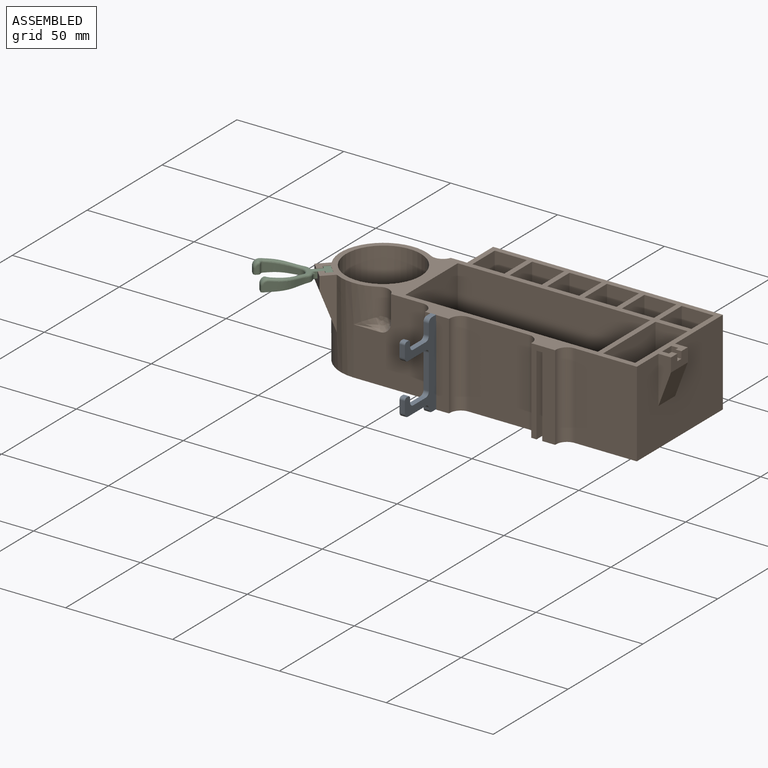
[diagram: assembled view]
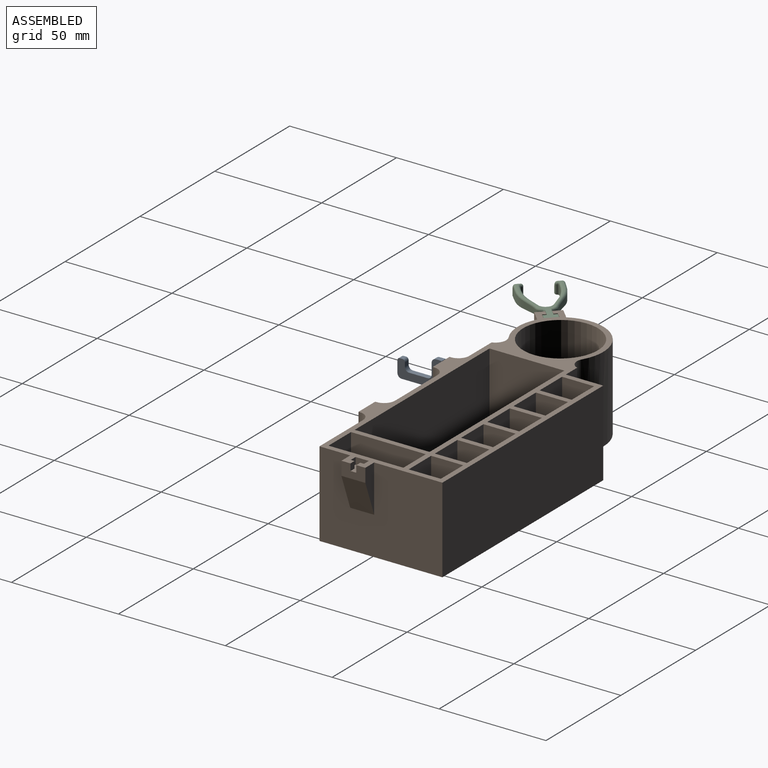
[diagram: assembled view, second angle]
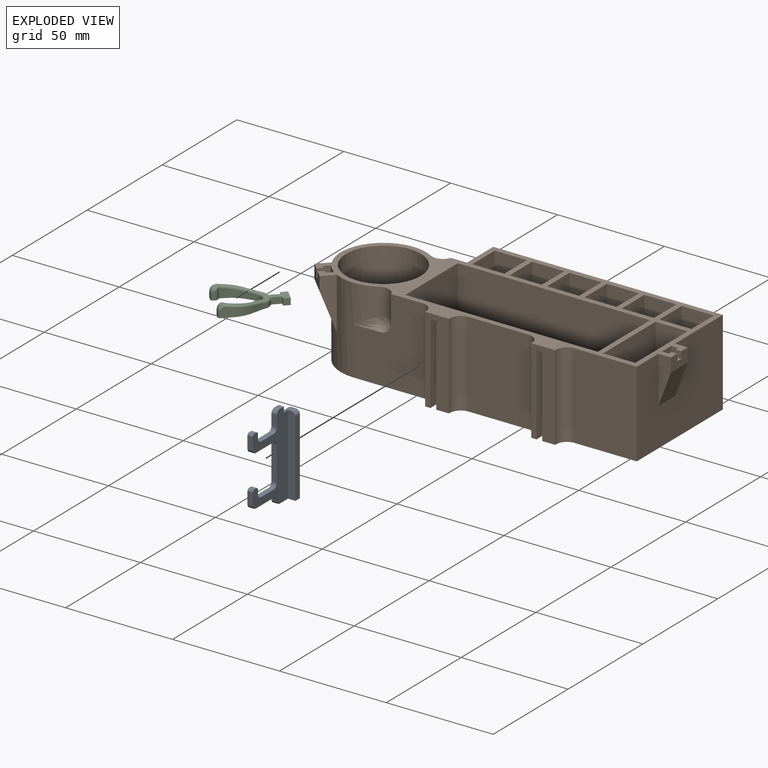
[diagram: exploded view]
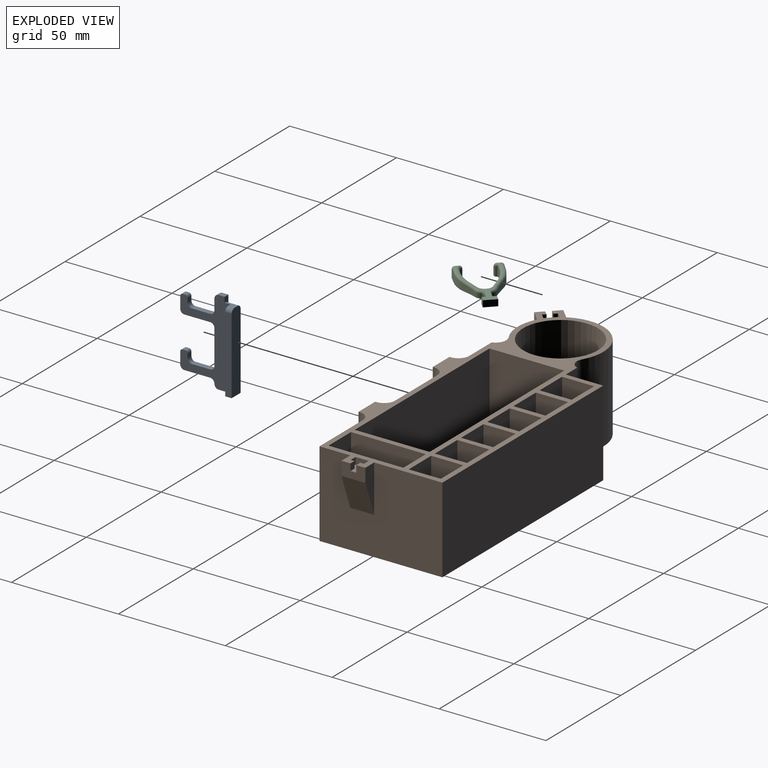
[diagram: exploded view, second angle]
ASSEMBLY  parts=3 mates=2
PART A: 38 faces, bbox 26.5x6x40 mm
  f0: plane 2.8x2.5mm, normal (0,0,1), area 7mm2, adj f15,f16,f19,f35
  f1: plane 16x2.5mm, normal (1,0,0), area 40mm2, adj f15,f16,f17,f22
  f2: plane 12x2.5mm, normal (0,0,-1), area 30mm2, adj f15,f16,f17,f24
  f3: plane 5.34x2.5mm, normal (1,0,0), area 13.3mm2, adj f15,f16,f24,f28
  f4: plane 2.5x1.17mm, normal (0,0,1), area 2.9mm2, adj f15,f16,f27,f28
  f5: plane 2.5x1.84mm, normal (-1,0,0), area 4.6mm2, adj f15,f16,f23,f27
  f6: plane 8.5x2.5mm, normal (0,0,1), area 21.2mm2, adj f15,f16,f18,f23
  f7: plane 5x2.5mm, normal (1,0,0), area 12.5mm2, adj f15,f16,f18,f19
  f8: plane 8.5x6mm, normal (0,0,-1), area 31.8mm2, adj f15,f16,f20,f31,f32,f33
  f9: plane 2.5x0mm, normal (1,0,0), area 0mm2, adj f15,f16,f20,f21
  f10: plane 12x2.5mm, normal (0,0,-1), area 30mm2, adj f15,f16,f21,f26
  f11: plane 5.34x2.5mm, normal (1,0,0), area 13.3mm2, adj f15,f16,f26,f30
  f12: plane 2.5x1.17mm, normal (0,0,1), area 2.9mm2, adj f15,f16,f29,f30
  f13: plane 2.5x1.84mm, normal (-1,0,0), area 4.6mm2, adj f15,f16,f25,f29
  f14: plane 8.5x2.5mm, normal (0,0,1), area 21.2mm2, adj f15,f16,f22,f25
  f15: plane 40.01x26.5mm, normal (0,-1,0), area 542.1mm2, adj f0,f1,f2,f3,f4,f5,f6,f7
  f16: plane 40.01x23.5mm, normal (0,1,0), area 440.8mm2, adj f0,f1,f2,f3,f4,f5,f6,f7
  f17: cylinder r=2mm len=2.5mm, axis (0,-1,0), area 7.9mm2, adj f1,f2,f15,f16
  f18: cylinder r=2mm len=2.5mm, axis (0,1,0), area 7.9mm2, adj f6,f7,f15,f16
  f19: cylinder r=2mm len=2.5mm, axis (0,-1,0), area 7.9mm2, adj f0,f7,f15,f16
  f20: cylinder r=2mm len=2.5mm, axis (0,1,0), area 7.9mm2, adj f8,f9,f15,f16
  f21: cylinder r=2mm len=2.5mm, axis (0,-1,0), area 7.9mm2, adj f9,f10,f15,f16
  f22: cylinder r=2mm len=2.5mm, axis (0,1,0), area 7.9mm2, adj f1,f14,f15,f16
  f23: cylinder r=2mm len=2.5mm, axis (0,1,0), area 7.9mm2, adj f5,f6,f15,f16
  f24: cylinder r=2mm len=2.5mm, axis (0,1,0), area 7.9mm2, adj f2,f3,f15,f16
  f25: cylinder r=2mm len=2.5mm, axis (0,1,0), area 7.9mm2, adj f13,f14,f15,f16
  f26: cylinder r=2mm len=2.5mm, axis (0,1,0), area 7.9mm2, adj f10,f11,f15,f16
  f27: cylinder r=1.17mm len=2.5mm, axis (0,-1,0), area 4.6mm2, adj f4,f5,f15,f16
  f28: cylinder r=1.17mm len=2.5mm, axis (0,-1,0), area 4.6mm2, adj f3,f4,f15,f16
  f29: cylinder r=1.17mm len=2.5mm, axis (0,-1,0), area 4.6mm2, adj f12,f13,f15,f16
  f30: cylinder r=1.17mm len=2.5mm, axis (0,-1,0), area 4.6mm2, adj f11,f12,f15,f16
  f31: plane 37.5x3.5mm, normal (1,0,0), area 130.4mm2, adj f8,f16,f32,f34,f37
  f32: plane 35.54x3mm, normal (0,1,0), area 106.6mm2, adj f8,f31,f33,f37
  f33: plane 37.5x6mm, normal (-1,0,0), area 223.3mm2, adj f8,f15,f32,f34,f36,f37
  f34: plane 5.7x2.08mm, normal (0,0,1), area 7.7mm2, adj f16,f31,f33,f35,f36,f37
  f35: plane 4.47x2.5mm, normal (-1,0,0), area 7.1mm2, adj f0,f15,f16,f34,f36
  f36: cylinder r=1.96mm len=5.7mm, axis (1,0,0), area 17.6mm2, adj f15,f33,f34,f35
  f37: cylinder r=1.96mm len=3mm, axis (1,0,0), area 9.2mm2, adj f31,f32,f33,f34
PART B: 108 faces, bbox 160.7x63.2x40 mm
  f0: plane 6.2x3.2mm, normal (1,0,0), area 19.8mm2, adj f15,f101,f102,f106
  f1: plane 57.5x40mm, normal (1,0,0), area 2052.4mm2, adj f15,f17,f29,f73,f100,f103,f107
  f2: plane 37.5x15mm, normal (0,1,0), area 562.5mm2, adj f15,f69,f77,f83
  f3: plane 37.5x15mm, normal (0,1,0), area 562.5mm2, adj f15,f60,f61,f79
  f4: plane 37.5x15mm, normal (0,1,0), area 562.5mm2, adj f15,f63,f74,f84
  f5: plane 37.5x15mm, normal (0,1,0), area 562.5mm2, adj f15,f64,f65,f81
  f6: plane 37.5x15mm, normal (0,1,0), area 562.5mm2, adj f15,f66,f67,f80
  f7: plane 37.5x15mm, normal (0,1,0), area 562.5mm2, adj f15,f70,f72,f82
  f8: plane 40x25.05mm, normal (0,1,0), area 701.3mm2, adj f15,f17,f28,f48,f49,f50,f59
  f9: plane 37.5x15mm, normal (0,1,0), area 562.5mm2, adj f10,f12,f13,f15
  f10: plane 37.5x35mm, normal (1,0,0), area 1312.5mm2, adj f9,f11,f13,f15
  f11: plane 37.5x15mm, normal (0,-1,0), area 562.5mm2, adj f10,f12,f13,f15
  f12: plane 37.5x35mm, normal (-1,0,0), area 1312.5mm2, adj f9,f11,f13,f15
  f13: plane 35x15mm, normal (0,0,1), area 525mm2, adj f9,f10,f11,f12
  f14: plane 6.2x5.7mm, normal (0,0,-1), area 26.6mm2, adj f18,f19,f20,f21,f22,f35
  f15: plane 160.68x63.2mm, normal (0,0,1), area 1994.1mm2, adj f0,f1,f2,f3,f4,f5,f6,f7
  f16: plane 6.2x5.7mm, normal (0,0,-1), area 26.6mm2, adj f23,f24,f25,f26,f27,f31
  f17: plane 152.5x63.2mm, normal (0,0,-1), area 7905.3mm2, adj f1,f8,f18,f19,f20,f21,f22,f23
  f18: plane 37.5x6.2mm, normal (0,-1,0), area 232.5mm2, adj f14,f17,f19,f22
  f19: plane 37.5x3.2mm, normal (-1,0,0), area 120mm2, adj f14,f17,f18,f20
  f20: plane 37.5x3.5mm, normal (0,1,0), area 131.2mm2, adj f14,f17,f19,f21
  f21: plane 37.5x2.5mm, normal (-1,0,0), area 93.8mm2, adj f14,f17,f20,f35
  f22: plane 37.5x5.7mm, normal (1,0,0), area 213.8mm2, adj f14,f17,f18,f35
  f23: plane 37.5x6.2mm, normal (0,-1,0), area 232.5mm2, adj f16,f17,f24,f27
  f24: plane 37.5x3.2mm, normal (-1,0,0), area 120mm2, adj f16,f17,f23,f25
  f25: plane 37.5x3.5mm, normal (0,1,0), area 131.2mm2, adj f16,f17,f24,f26
  f26: plane 37.5x2.5mm, normal (-1,0,0), area 93.8mm2, adj f16,f17,f25,f31
  f27: plane 37.5x5.7mm, normal (1,0,0), area 213.8mm2, adj f16,f17,f23,f31
  f28: cylinder r=20mm len=40mm, axis (0,0,1), area 2565.1mm2, adj f8,f15,f17,f37,f45,f46,f47,f48
  f29: plane 40x29.14mm, normal (0,-1,0), area 1165.4mm2, adj f1,f15,f17,f51
  f30: plane 40x0.62mm, normal (1,0,0), area 24.8mm2, adj f15,f17,f31,f51
  f31: plane 40x11.2mm, normal (0,-1,0), area 346.8mm2, adj f15,f16,f17,f26,f27,f30,f32
  f32: plane 40x0.62mm, normal (-1,0,0), area 24.8mm2, adj f15,f17,f31,f54
  f33: plane 40x28.25mm, normal (0,-1,0), area 1130.2mm2, adj f15,f17,f53,f54
  f34: plane 40x0.62mm, normal (1,0,0), area 24.8mm2, adj f15,f17,f35,f53
  f35: plane 40x11.2mm, normal (0,-1,0), area 346.8mm2, adj f14,f15,f17,f21,f22,f34,f36
  f36: plane 40x0.62mm, normal (-1,0,0), area 24.8mm2, adj f15,f17,f35,f52
  f37: plane 40x32.39mm, normal (0,-1,0), area 994.9mm2, adj f15,f17,f28,f45,f46,f47,f52
  f38: plane 79.84x24.84mm, normal (0,0,1), area 1983.2mm2, adj f55,f56,f57,f58
  f39: plane 35x32.42mm, normal (1,0,0), area 1134.7mm2, adj f15,f40,f42,f57
  f40: plane 90x32.42mm, normal (0,1,0), area 2917.8mm2, adj f15,f39,f41,f58
  f41: plane 35x32.42mm, normal (-1,0,0), area 1134.7mm2, adj f15,f40,f42,f56
  f42: plane 90x32.42mm, normal (0,-1,0), area 2917.8mm2, adj f15,f39,f41,f55
  f43: plane 35x35mm, normal (0,0,1), area 962.1mm2, adj f44
  f44: cylinder r=17.5mm len=37.5mm, axis (0,0,-1), area 4123.3mm2, adj f15,f43
  f45: bspline ~13.08x4.89mm, area 33.2mm2, adj f28,f37,f46
  f46: bspline ~7.62x6.66mm, area 40.3mm2, adj f28,f37,f45,f47
  f47: cylinder r=5.08mm len=12.42mm, axis (0,0,1), area 111.9mm2, adj f15,f28,f37,f46
  f48: bspline ~13.08x4.89mm, area 33.7mm2, adj f8,f28,f49
  f49: bspline ~7.8x6.34mm, area 40.3mm2, adj f8,f28,f48,f50
  f50: cylinder r=5.08mm len=12.42mm, axis (0,0,1), area 111.9mm2, adj f8,f15,f28,f49
  f51: cylinder r=5.08mm len=40mm, axis (0,0,1), area 319.2mm2, adj f15,f17,f29,f30
  f52: cylinder r=5.08mm len=40mm, axis (0,0,1), area 319.2mm2, adj f15,f17,f36,f37
  f53: cylinder r=5.08mm len=40mm, axis (0,0,1), area 319.2mm2, adj f15,f17,f33,f34
  f54: cylinder r=5.08mm len=40mm, axis (0,0,-1), area 319.2mm2, adj f15,f17,f32,f33
  f55: cylinder r=5.08mm len=90mm, axis (1,0,0), area 688.7mm2, adj f38,f42,f56,f57
  f56: cylinder r=5.08mm len=35mm, axis (0,-1,0), area 249.8mm2, adj f38,f41,f55,f58
  f57: cylinder r=5.08mm len=35mm, axis (0,1,0), area 249.8mm2, adj f38,f39,f55,f58
  f58: cylinder r=5.08mm len=90mm, axis (-1,0,0), area 688.7mm2, adj f38,f40,f56,f57
  f59: plane 40x17.5mm, normal (-1,0,0), area 700mm2, adj f8,f15,f17,f73
  f60: plane 37.5x15mm, normal (-1,0,0), area 562.5mm2, adj f3,f15,f78,f79
  f61: plane 37.5x15mm, normal (1,0,0), area 562.5mm2, adj f3,f15,f78,f79
  f62: plane 37.5x15mm, normal (0,-1,0), area 562.5mm2, adj f15,f63,f74,f84
  f63: plane 37.5x15mm, normal (-1,0,0), area 562.5mm2, adj f4,f15,f62,f84
  f64: plane 37.5x15mm, normal (-1,0,0), area 562.5mm2, adj f5,f15,f75,f81
  f65: plane 37.5x15mm, normal (1,0,0), area 562.5mm2, adj f5,f15,f75,f81
  f66: plane 37.5x15mm, normal (-1,0,0), area 562.5mm2, adj f6,f15,f76,f80
  f67: plane 37.5x15mm, normal (1,0,0), area 562.5mm2, adj f6,f15,f76,f80
  f68: plane 37.5x15mm, normal (0,-1,0), area 562.5mm2, adj f15,f69,f77,f83
  f69: plane 37.5x15mm, normal (-1,0,0), area 562.5mm2, adj f2,f15,f68,f83
  f70: plane 37.5x15mm, normal (1,0,0), area 562.5mm2, adj f7,f15,f71,f82
  f71: plane 37.5x15mm, normal (0,-1,0), area 562.5mm2, adj f15,f70,f72,f82
  f72: plane 37.5x15mm, normal (-1,0,0), area 562.5mm2, adj f7,f15,f71,f82
  f73: plane 107.45x40mm, normal (0,1,0), area 4298mm2, adj f1,f15,f17,f59
  f74: plane 37.5x15mm, normal (1,0,0), area 562.5mm2, adj f4,f15,f62,f84
  f75: plane 37.5x15mm, normal (0,-1,0), area 562.5mm2, adj f15,f64,f65,f81
  f76: plane 37.5x15mm, normal (0,-1,0), area 562.5mm2, adj f15,f66,f67,f80
  f77: plane 37.5x15mm, normal (1,0,0), area 562.5mm2, adj f2,f15,f68,f83
  f78: plane 37.5x15mm, normal (0,-1,0), area 562.5mm2, adj f15,f60,f61,f79
  f79: plane 15x15mm, normal (0,0,1), area 225mm2, adj f3,f60,f61,f78
  f80: plane 15x15mm, normal (0,0,1), area 225mm2, adj f6,f66,f67,f76
  f81: plane 15x15mm, normal (0,0,1), area 225mm2, adj f5,f64,f65,f75
  f82: plane 15x15mm, normal (0,0,1), area 225mm2, adj f7,f70,f71,f72
  f83: plane 15x15mm, normal (0,0,1), area 225mm2, adj f2,f68,f69,f77
  f84: plane 15x15mm, normal (0,0,1), area 225mm2, adj f4,f62,f63,f74
  f85: plane 4.45x4.45mm, normal (-0.71,-0.71,0), area 20.1mm2, adj f15,f90,f94,f95
  f86: plane 24.25x4.74mm, normal (-0.71,0.71,0), area 102.6mm2, adj f15,f28,f87,f96
  f87: plane 8x8mm, normal (-0.71,-0.71,0), area 63.5mm2, adj f15,f86,f88,f92,f93,f95,f96
  f88: plane 3.2x1.91mm, normal (0.71,-0.71,0), area 8.6mm2, adj f15,f87,f89,f95
  f89: plane 3.2x1.24mm, normal (0.71,0.71,0), area 5.6mm2, adj f15,f88,f90,f95
  f90: plane 3.2x2.33mm, normal (0.73,-0.69,0), area 10.2mm2, adj f15,f85,f89,f95
  f91: plane 3.2x1.24mm, normal (0.71,0.71,0), area 5.6mm2, adj f15,f92,f94,f95
  f92: plane 3.2x1.91mm, normal (-0.71,0.71,0), area 8.6mm2, adj f15,f87,f91,f95
  f93: plane 24.32x4.76mm, normal (0.71,-0.71,0), area 103.3mm2, adj f15,f28,f87,f96
  f94: plane 3.2x2.26mm, normal (-0.71,0.71,0), area 10.2mm2, adj f15,f85,f91,f95
  f95: plane 7.38x7.32mm, normal (0,0,1), area 27.3mm2, adj f85,f87,f88,f89,f90,f91,f92,f94
  f96: plane 17.95x12.76mm, normal (-0.66,-0.66,-0.35), area 198.9mm2, adj f28,f86,f87,f93
  f97: plane 3.2x1.75mm, normal (-1,0,0), area 5.6mm2, adj f15,f98,f101,f106
  f98: plane 3.2x2.7mm, normal (0,-1,0), area 8.6mm2, adj f15,f97,f99,f106
  f99: plane 11.2x6.38mm, normal (1,0,0), area 62.7mm2, adj f15,f98,f100,f103,f104,f106,f107
  f100: plane 22.11x5.9mm, normal (0,1,0), area 84mm2, adj f1,f15,f99,f107
  f101: plane 3.2x3.2mm, normal (0,-1,0), area 10.2mm2, adj f0,f15,f97,f106
  f102: plane 3.2x3.2mm, normal (0,1,0), area 10.2mm2, adj f0,f15,f105,f106
  f103: plane 22.11x5.9mm, normal (0,-1,0), area 84mm2, adj f1,f15,f99,f107
  f104: plane 3.2x2.7mm, normal (0,1,0), area 8.6mm2, adj f15,f99,f105,f106
  f105: plane 3.2x1.75mm, normal (-1,0,0), area 5.6mm2, adj f15,f102,f104,f106
  f106: plane 6.2x5.9mm, normal (0,0,1), area 27.1mm2, adj f0,f97,f98,f99,f101,f102,f104,f105
  f107: plane 15.73x11.2mm, normal (0.94,0,-0.35), area 188.2mm2, adj f1,f99,f100,f103
PART C: 78 faces, bbox 20.6x30.1x6.5 mm
  f0: plane 3x3mm, normal (1,0,0), area 9mm2, adj f1,f19,f20,f22
  f1: plane 3x1.75mm, normal (0,1,0), area 5.3mm2, adj f0,f2,f20,f22
  f2: plane 5.69x3.4mm, normal (1,0,0), area 11.2mm2, adj f1,f20,f21,f22,f26,f58
  f3: plane 3.51x3.13mm, normal (0.85,-0.53,0), area 12mm2, adj f20,f31,f33,f55
  f4: plane 4.83x4.46mm, normal (1,0,0), area 20.3mm2, adj f20,f33,f51,f52,f53
  f5: plane 2.64x1.92mm, normal (0,1,0), area 5.1mm2, adj f20,f23,f41,f51
  f6: plane 4.08x0.79mm, normal (-1,0,0), area 2.9mm2, adj f20,f40,f41,f42
  f7: plane 4.32x1.83mm, normal (-1,0,0), area 7.7mm2, adj f20,f34,f60,f65
  f8: plane 3.92x2.99mm, normal (-0.85,0.53,0), area 12.6mm2, adj f20,f29,f34,f67
  f9: plane 2.21x0.38mm, normal (0,1,0), area 0.8mm2, adj f20,f29,f30,f69
  f10: plane 3.92x2.99mm, normal (0.85,0.53,0), area 12.6mm2, adj f20,f30,f35,f71
  f11: plane 4.32x1.83mm, normal (1,0,0), area 7.7mm2, adj f20,f35,f59,f73
  f12: plane 4.08x0.79mm, normal (1,0,0), area 2.9mm2, adj f20,f37,f38,f39
  f13: plane 2.64x1.92mm, normal (0,1,0), area 5.1mm2, adj f20,f24,f37,f43
  f14: plane 4.83x4.46mm, normal (-1,0,0), area 20.3mm2, adj f20,f36,f43,f44,f45
  f15: plane 3.51x3.13mm, normal (-0.85,-0.53,0), area 12mm2, adj f20,f32,f36,f47
  f16: plane 5.69x3.4mm, normal (-1,0,0), area 11.2mm2, adj f17,f20,f21,f22,f25,f50
  f17: plane 3x1.75mm, normal (0,1,0), area 5.3mm2, adj f16,f18,f20,f22
  f18: plane 3x3mm, normal (-1,0,0), area 9mm2, adj f17,f19,f20,f22
  f19: plane 6x3mm, normal (0,-1,0), area 18mm2, adj f0,f18,f20,f22
  f20: plane 29.56x20.25mm, normal (0,0,-1), area 155.3mm2, adj f0,f1,f2,f3,f4,f5,f6,f7
  f21: plane 18.38x18.28mm, normal (0,-0.13,0.99), area 20.6mm2, adj f2,f16,f22,f23,f24,f45,f46,f47
  f22: plane 8x6mm, normal (0,0,1), area 30.5mm2, adj f0,f1,f2,f16,f17,f18,f19,f21
  f23: cylinder r=2.8mm len=3.17mm, axis (1,0,0), area 8.2mm2, adj f5,f21,f42,f52,f63
  f24: cylinder r=2.8mm len=3.17mm, axis (1,0,0), area 8.2mm2, adj f13,f21,f39,f44,f75
  f25: cylinder r=1.53mm len=2.12mm, axis (0,0,-1), area 3.8mm2, adj f16,f20,f27,f50
  f26: cylinder r=1.53mm len=2.12mm, axis (0,0,1), area 3.8mm2, adj f2,f20,f28,f58
  f27: cylinder r=3.31mm len=2.29mm, axis (0,0,-1), area 6.1mm2, adj f20,f25,f32,f49
  f28: cylinder r=3.31mm len=2.29mm, axis (0,0,-1), area 6.1mm2, adj f20,f26,f31,f57
  f29: cylinder r=3.3mm len=2.81mm, axis (0,0,1), area 7.9mm2, adj f8,f9,f20,f68
  f30: cylinder r=3.3mm len=2.81mm, axis (0,0,-1), area 7.9mm2, adj f9,f10,f20,f70
  f31: cylinder r=23.5mm len=2.76mm, axis (0,0,-1), area 7.7mm2, adj f3,f20,f28,f56
  f32: cylinder r=23.5mm len=2.76mm, axis (0,0,-1), area 7.7mm2, adj f15,f20,f27,f48
  f33: cylinder r=14.75mm len=7.75mm, axis (0,0,-1), area 29.4mm2, adj f3,f4,f20,f54
  f34: cylinder r=14.75mm len=7.75mm, axis (0,0,1), area 28.9mm2, adj f7,f8,f20,f66
  f35: cylinder r=14.75mm len=7.75mm, axis (0,0,1), area 28.9mm2, adj f10,f11,f20,f72
  f36: cylinder r=14.75mm len=7.75mm, axis (0,0,-1), area 29.4mm2, adj f14,f15,f20,f46
  f37: cylinder r=1.1mm len=2.64mm, axis (0,0,-1), area 4.6mm2, adj f12,f13,f20,f39
  f38: cylinder r=1.1mm len=4.28mm, axis (0,0,1), area 5.7mm2, adj f12,f20,f59,f77
  f39: torus R=1.7mm, axis (1,0,0), area 4.5mm2, adj f12,f24,f37,f76,f77
  f40: cylinder r=1.1mm len=4.28mm, axis (0,0,1), area 5.7mm2, adj f6,f20,f60,f61
  f41: cylinder r=1.1mm len=2.64mm, axis (0,0,-1), area 4.6mm2, adj f5,f6,f20,f42
  f42: torus R=1.7mm, axis (1,0,0), area 4.5mm2, adj f6,f23,f41,f61,f62
  f43: cylinder r=0.98mm len=2.64mm, axis (0,0,-1), area 4.1mm2, adj f13,f14,f20,f44
  f44: torus R=1.82mm, axis (-1,0,0), area 6.4mm2, adj f14,f24,f43,f45
  f45: cylinder r=0.98mm len=2.9mm, axis (0,0.99,0.13), area 4.3mm2, adj f14,f21,f44,f46
  f46: bspline ~7.75x3.03mm, area 12.1mm2, adj f21,f36,f45,f47
  f47: cylinder r=0.98mm len=3.91mm, axis (-0.52,0.85,0.11), area 6.1mm2, adj f15,f21,f46,f48
  f48: bspline ~3.16x2.36mm, area 4.7mm2, adj f21,f32,f47,f49
  f49: bspline ~2.3x2.07mm, area 3.5mm2, adj f21,f27,f48,f50
  f50: bspline ~2.89x2.18mm, area 2.1mm2, adj f16,f21,f25,f49
  f51: cylinder r=0.98mm len=2.64mm, axis (0,0,-1), area 4.1mm2, adj f4,f5,f20,f52
  f52: torus R=1.82mm, axis (-1,0,0), area 6.4mm2, adj f4,f23,f51,f53
  f53: cylinder r=0.98mm len=2.9mm, axis (0,-0.99,-0.13), area 4.3mm2, adj f4,f21,f52,f54
  f54: bspline ~7.75x3.03mm, area 12.1mm2, adj f21,f33,f53,f55
  f55: cylinder r=0.98mm len=3.91mm, axis (-0.52,-0.85,-0.11), area 6.1mm2, adj f3,f21,f54,f56
  f56: bspline ~3.16x2.36mm, area 4.7mm2, adj f21,f31,f55,f57
  f57: bspline ~2.3x2.07mm, area 3.5mm2, adj f21,f28,f56,f58
  f58: bspline ~2.89x2.18mm, area 2.1mm2, adj f2,f21,f26,f57
  f59: bspline ~5.98x1.05mm, area 6.1mm2, adj f11,f20,f38,f74,f75,f76
  f60: bspline ~5.98x1.05mm, area 6.1mm2, adj f7,f20,f40,f62,f63,f64
  f61: bspline ~1.58x1.38mm, area 1mm2, adj f40,f42,f62
  f62: bspline ~1.63x1.39mm, area 0.5mm2, adj f42,f60,f61,f63
  f63: bspline ~2.26x1.83mm, area 2.3mm2, adj f23,f60,f62,f64
  f64: bspline ~1.47x1.2mm, area 1.1mm2, adj f21,f60,f63,f65
  f65: cylinder r=0.98mm len=1.96mm, axis (0,0.99,0.13), area 2.8mm2, adj f7,f21,f64,f66
  f66: bspline ~8.39x3.18mm, area 13.3mm2, adj f21,f34,f65,f67
  f67: cylinder r=0.98mm len=4.57mm, axis (0.52,0.85,0.11), area 7.5mm2, adj f8,f21,f66,f68
  f68: bspline ~3.64x2.68mm, area 6.1mm2, adj f21,f29,f67,f69
  f69: cylinder r=0.98mm len=1.11mm, axis (1,0,0), area 0.6mm2, adj f9,f21,f68,f70
  f70: bspline ~3.64x2.68mm, area 6.1mm2, adj f21,f30,f69,f71
  f71: cylinder r=0.98mm len=4.57mm, axis (0.52,-0.85,-0.11), area 7.5mm2, adj f10,f21,f70,f72
  f72: bspline ~8.39x3.18mm, area 13.3mm2, adj f21,f35,f71,f73
  f73: cylinder r=0.98mm len=1.96mm, axis (0,-0.99,-0.13), area 2.8mm2, adj f11,f21,f72,f74
  f74: bspline ~1.21x1.13mm, area 1.1mm2, adj f21,f59,f73,f75
  f75: bspline ~2.07x1.82mm, area 2.3mm2, adj f24,f59,f74,f76
  f76: bspline ~1.63x1.39mm, area 0.5mm2, adj f39,f59,f75,f77
  f77: bspline ~1.58x1.38mm, area 1mm2, adj f38,f39,f76
PLACE A rot(axis=(0,0,-1),90deg) t=(-33.02,-24.12,4.05)mm
PLACE B t=(-8.09,-1.12,6.42)mm fixed
PLACE C rot(axis=(0,0,1),135deg) t=(-90.79,-16.32,40.82)mm
MATE planar C.f19 <-> B.f85  axis (0.71,0.71,0) through (-89.73,-15.26,42.32)mm
MATE planar A.f33 <-> B.f18  axis (0,1,0) through (-32.52,-21.12,22.67)mm
